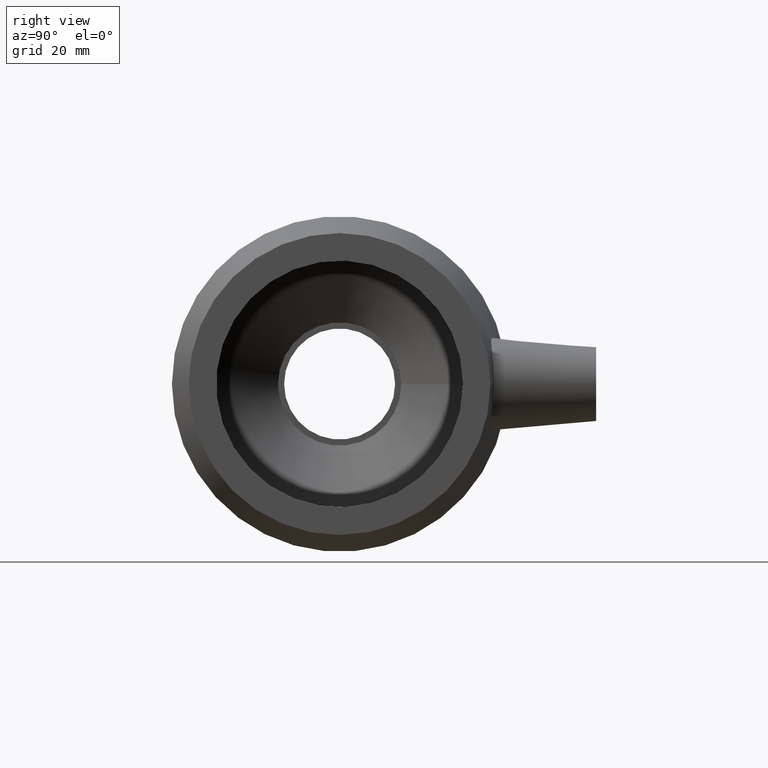
[diagram: clean part render]
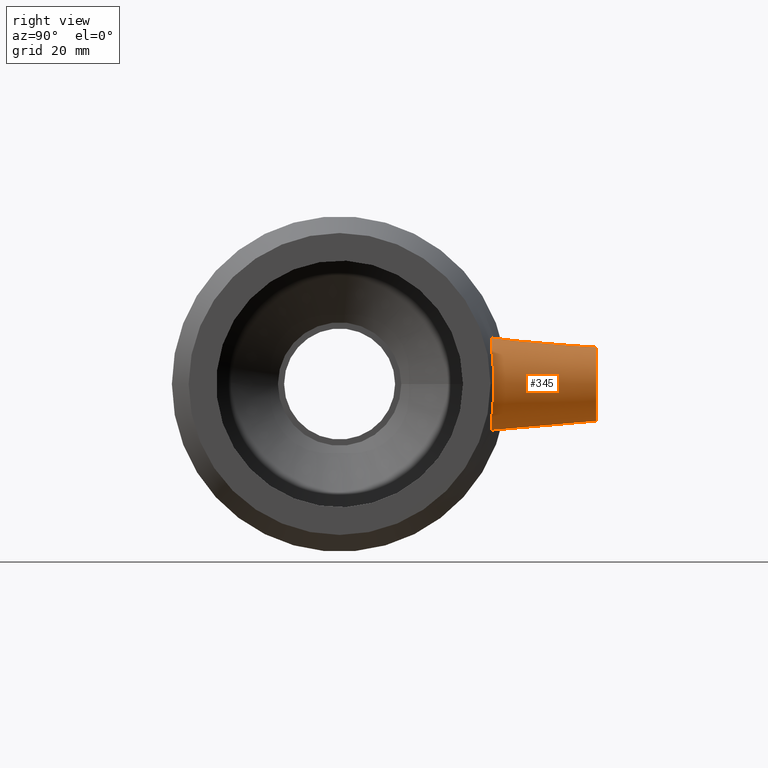
[diagram: same view with one face highlighted and labeled with its STEP entity id]
A machine part, right view. The second image highlights one B-rep face of the part: STEP entity #345.
In plain terms, the highlighted conical surface has half-angle 5 deg.
Its self-contained STEP definition (entity closure, byte-faithful):
#15=B_SPLINE_CURVE_WITH_KNOTS('',3,(#582,#583,#584,#585,#586,#587,#588,
#589,#590,#591,#592,#593,#594,#595,#596,#597,#598,#599,#600,#601,#602,#603,
#604,#605,#606,#607,#608,#609,#610,#611,#612,#613,#614,#615),
 .UNSPECIFIED.,.T.,.F.,(4,2,2,2,2,2,2,2,2,2,2,2,2,2,2,2,4),(0.,0.341379548688622,
0.682759097377244,1.02676356623057,1.3707680350839,1.71477250393723,2.05877697279055,
2.40015652147918,2.7415360701678,3.10901405671736,3.47649204326692,3.83561147869747,
4.19473091412802,4.55385034955857,4.91296978498913,5.28044777153869,5.64792575808824),
 .UNSPECIFIED.);
#19=CONICAL_SURFACE('',#385,7.5,5.);
#32=FACE_BOUND('',#112,.T.);
#75=FACE_OUTER_BOUND('',#111,.T.);
#111=EDGE_LOOP('',(#269));
#112=EDGE_LOOP('',(#270));
#168=CIRCLE('',#384,7.5);
#198=VERTEX_POINT('',#578);
#199=VERTEX_POINT('',#581);
#230=EDGE_CURVE('',#198,#198,#168,.T.);
#231=EDGE_CURVE('',#199,#199,#15,.T.);
#269=ORIENTED_EDGE('',*,*,#230,.T.);
#270=ORIENTED_EDGE('',*,*,#231,.F.);
#345=ADVANCED_FACE('',(#75,#32),#19,.T.);
#384=AXIS2_PLACEMENT_3D('',#579,#459,#460);
#385=AXIS2_PLACEMENT_3D('',#580,#461,#462);
#459=DIRECTION('center_axis',(0.,-1.,0.));
#460=DIRECTION('ref_axis',(1.,0.,0.));
#461=DIRECTION('center_axis',(0.,-1.,0.));
#462=DIRECTION('ref_axis',(1.,0.,0.));
#578=CARTESIAN_POINT('',(27.5,52.,9.18485099360515E-16));
#579=CARTESIAN_POINT('Origin',(35.,52.,0.));
#580=CARTESIAN_POINT('Origin',(35.,52.,0.));
#581=CARTESIAN_POINT('',(35.4027349415893,30.9087565450192,-9.33656270297783));
#582=CARTESIAN_POINT('Ctrl Pts',(35.4027349415892,30.9087565450192,-9.33656270297783));
#583=CARTESIAN_POINT('Ctrl Pts',(36.5331328733349,30.7836149378333,-9.29876136145376));
#584=CARTESIAN_POINT('Ctrl Pts',(37.7362075374854,30.721119776584,-9.03387796139761));
#585=CARTESIAN_POINT('Ctrl Pts',(39.9378909214666,30.732086836466,-8.04344779818808));
#586=CARTESIAN_POINT('Ctrl Pts',(40.9366046770825,30.8013461711594,-7.31809245713061));
#587=CARTESIAN_POINT('Ctrl Pts',(42.5104633708584,30.9621167031752,-5.66988737338561));
#588=CARTESIAN_POINT('Ctrl Pts',(43.191568993408,31.0642671451412,-4.63246139614854));
#589=CARTESIAN_POINT('Ctrl Pts',(44.0937499931319,31.2135896635098,-2.37098419812558));
#590=CARTESIAN_POINT('Ctrl Pts',(44.3147353896358,31.2574795807904,-1.14668156284442));
#591=CARTESIAN_POINT('Ctrl Pts',(44.3147353896358,31.2574795807904,1.14668156284442));
#592=CARTESIAN_POINT('Ctrl Pts',(44.0937499931319,31.2135896635098,2.37098419812557));
#593=CARTESIAN_POINT('Ctrl Pts',(43.191568993408,31.0642671451412,4.63246139614854));
#594=CARTESIAN_POINT('Ctrl Pts',(42.5104633708584,30.9621167031752,5.66988737338561));
#595=CARTESIAN_POINT('Ctrl Pts',(40.9366046770825,30.8013461711594,7.31809245713061));
#596=CARTESIAN_POINT('Ctrl Pts',(39.9378909214666,30.732086836466,8.04344779818808));
#597=CARTESIAN_POINT('Ctrl Pts',(37.7362075374854,30.721119776584,9.03387796139761));
#598=CARTESIAN_POINT('Ctrl Pts',(36.5331328733349,30.7836149378333,9.29876136145376));
#599=CARTESIAN_POINT('Ctrl Pts',(34.185918182784,31.0434652175771,9.37725395389049));
#600=CARTESIAN_POINT('Ctrl Pts',(32.898574036131,31.2672711177372,9.16192999067481));
#601=CARTESIAN_POINT('Ctrl Pts',(30.5420018413033,31.8089856122825,8.22208182710308));
#602=CARTESIAN_POINT('Ctrl Pts',(29.4715019244568,32.1222940611709,7.49810138853851));
#603=CARTESIAN_POINT('Ctrl Pts',(27.7993971502621,32.6621469378746,5.831168015762));
#604=CARTESIAN_POINT('Ctrl Pts',(27.0772865061555,32.9260637262616,4.78230940277386));
#605=CARTESIAN_POINT('Ctrl Pts',(26.1132247433443,33.291793454488,2.46563887936661));
#606=CARTESIAN_POINT('Ctrl Pts',(25.8718647179358,33.3903285700346,1.19706478476851));
#607=CARTESIAN_POINT('Ctrl Pts',(25.8718647179358,33.3903285700347,-1.19706478476851));
#608=CARTESIAN_POINT('Ctrl Pts',(26.1132247433443,33.291793454488,-2.46563887936661));
#609=CARTESIAN_POINT('Ctrl Pts',(27.0772865061555,32.9260637262616,-4.78230940277386));
#610=CARTESIAN_POINT('Ctrl Pts',(27.7993971502621,32.6621469378746,-5.831168015762));
#611=CARTESIAN_POINT('Ctrl Pts',(29.4715019244568,32.1222940611709,-7.49810138853851));
#612=CARTESIAN_POINT('Ctrl Pts',(30.5420018413033,31.8089856122825,-8.22208182710308));
#613=CARTESIAN_POINT('Ctrl Pts',(32.898574036131,31.2672711177371,-9.16192999067482));
#614=CARTESIAN_POINT('Ctrl Pts',(34.185918182784,31.0434652175771,-9.37725395389049));
#615=CARTESIAN_POINT('Ctrl Pts',(35.4027349415892,30.9087565450192,-9.33656270297783));